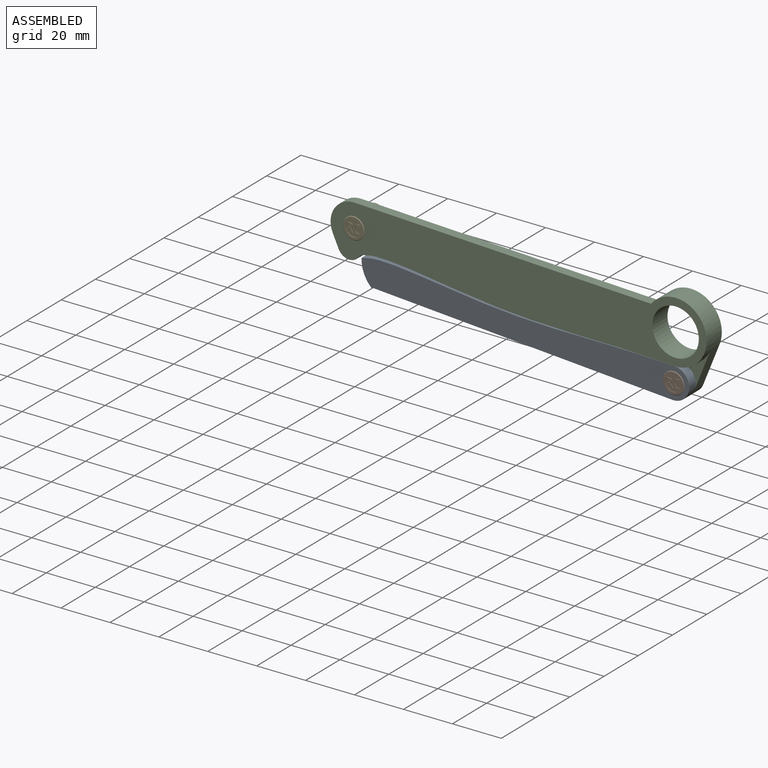
[diagram: assembled view]
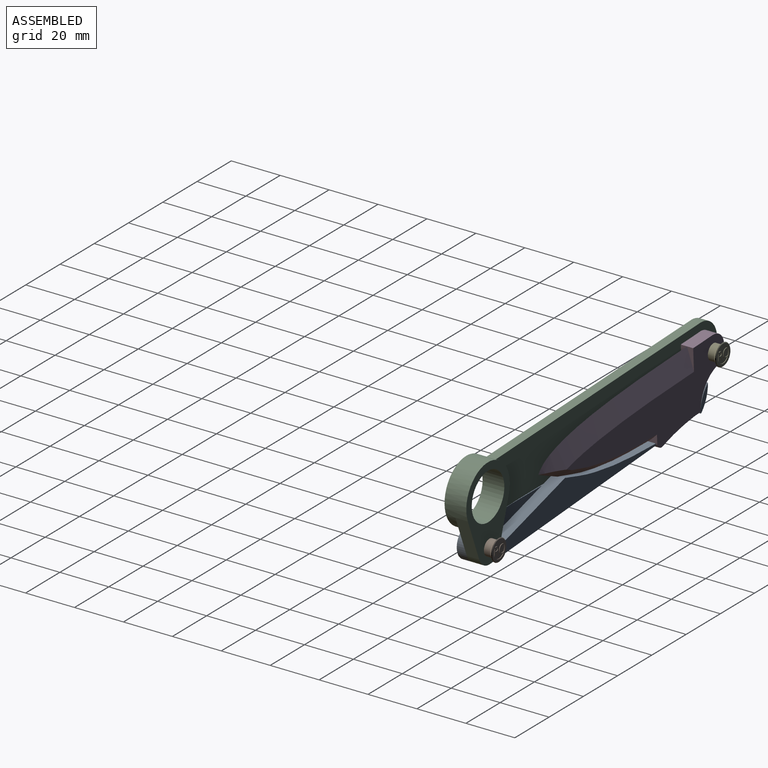
[diagram: assembled view, second angle]
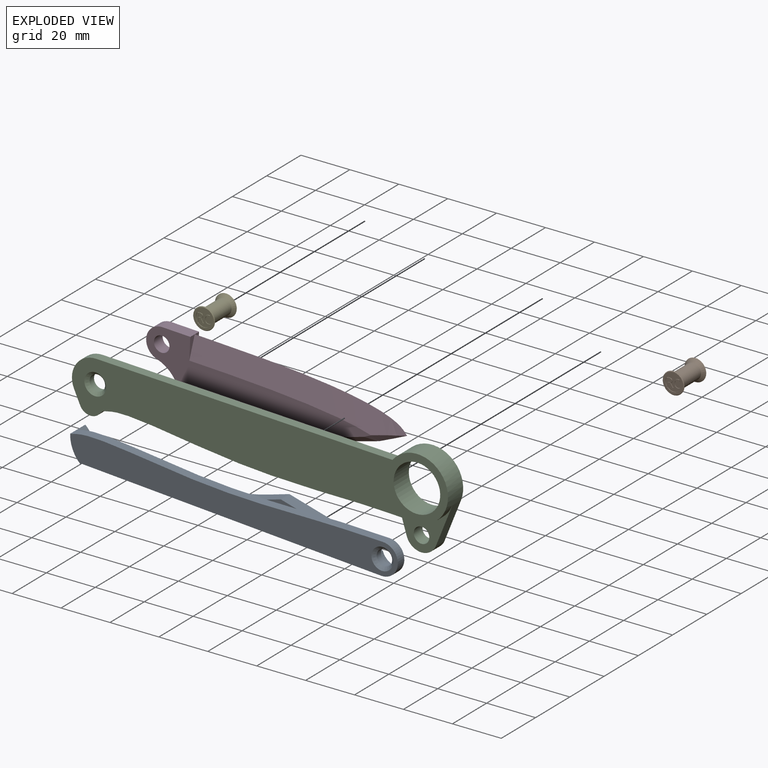
[diagram: exploded view]
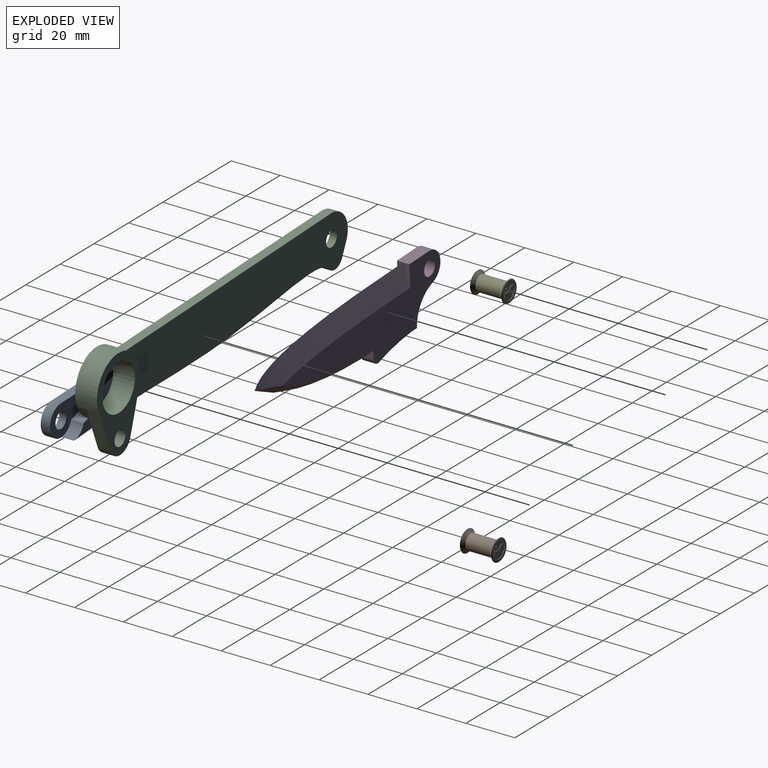
[diagram: exploded view, second angle]
ASSEMBLY  parts=5 mates=4
PART A: 21 faces, bbox 134.3x8.9x16.7 mm
  f0: plane 78.2x12.54mm, normal (0,1,0), area 564.9mm2, adj f4,f7,f12,f18,f19
  f1: plane 44.69x13.07mm, normal (0,1,0), area 240.7mm2, adj f5,f6,f7,f9,f16,f17
  f2: plane 0.51x0.46mm, normal (0,1,0), area 0.1mm2, adj f3,f8,f13
  f3: cylinder r=13.38mm len=3.81mm, axis (0,1,0), area 1.8mm2, adj f2,f4,f8,f10
  f4: plane 123.05x8.89mm, normal (0.04,0,1), area 962.1mm2, adj f0,f3,f5,f10,f17,f18,f20
  f5: cylinder r=6.35mm len=12.7mm, axis (0,1,0), area 76.9mm2, adj f1,f4,f6,f10
  f6: plane 14.86x3.81mm, normal (0,0,-1), area 56.6mm2, adj f1,f5,f7,f10
  f7: extruded ~113.07x3.94mm, area 432mm2, adj f0,f1,f6,f8,f10,f15
  f8: cylinder r=13.38mm len=10.14mm, axis (0,1,0), area 98.8mm2, adj f2,f3,f7,f10,f12,f13,f14
  f9: cylinder r=3.17mm len=6.35mm, axis (0,1,0), area 50.7mm2, adj f1,f11
  f10: plane 134.28x16.65mm, normal (0,-1,0), area 1356mm2, adj f3,f4,f5,f6,f7,f8,f11
  f11: cone r=3.17mm half-angle=45deg, axis (0,-1,0), area 43mm2, adj f9,f10
  f12: cylinder r=13.38mm len=9.68mm, axis (0,-1,0), area 56.1mm2, adj f0,f8,f13,f14
  f13: plane 5.08x0.5mm, normal (0,0,1), area 2.5mm2, adj f2,f8,f12,f14
  f14: plane 9.68x4.64mm, normal (0,1,0), area 18.2mm2, adj f8,f12,f13
  f15: plane 12.3x1.89mm, normal (0,-1,0), area 10.9mm2, adj f7,f16,f19
  f16: plane 38.46x9.43mm, normal (-0.24,0,-0.97), area 201.2mm2, adj f1,f15,f17,f19,f20
  f17: cylinder r=6.35mm len=5.75mm, axis (0,-1,0), area 38.5mm2, adj f1,f4,f16,f20
  f18: plane 5.08x0.72mm, normal (1,0,0), area 3.7mm2, adj f0,f4,f19,f20
  f19: extruded ~52.77x9.26mm, area 273.3mm2, adj f0,f15,f16,f18,f20
  f20: plane 96.97x13.66mm, normal (0,1,0), area 573.4mm2, adj f4,f16,f17,f18,f19
PART B: 89 faces, bbox 8.9x13.2x8.9 mm
  f0: cylinder r=3.17mm len=10.16mm, axis (0,1,0), area 202.7mm2, adj f1,f2
  f1: cone r=4.45mm half-angle=45deg, axis (0,-1,0), area 43mm2, adj f0,f45
  f2: cone r=3.17mm half-angle=45deg, axis (0,1,0), area 43mm2, adj f0,f88
  f3: plane 0.56x0.25mm, normal (0,0,1), area 0.1mm2, adj f4,f39,f40,f41
  f4: plane 1.35x0.25mm, normal (1,0,0), area 0.3mm2, adj f3,f5,f40,f41
  f5: plane 0.53x0.25mm, normal (0,0,-1), area 0.1mm2, adj f4,f6,f40,f41
  f6: extruded ~0.66x0.25mm, area 0.2mm2, adj f5,f7,f40,f41
  f7: extruded ~0.5x0.25mm, area 0.1mm2, adj f6,f8,f40,f41
  f8: extruded ~0.52x0.25mm, area 0.1mm2, adj f7,f39,f40,f41
  f9: cylinder r=3.17mm len=5.31mm, axis (0,1,0), area 1.6mm2, adj f10,f36,f40,f44
  f10: plane 0.35x0.25mm, normal (0,0,-1), area 0.1mm2, adj f9,f11,f40,f44
  f11: plane 1.47x0.25mm, normal (1,0,0), area 0.4mm2, adj f10,f12,f40,f44
  f12: plane 0.74x0.25mm, normal (0,0,-1), area 0.2mm2, adj f11,f13,f40,f44
  f13: plane 1.47x0.85mm, normal (-0.86,0,-0.5), area 0.4mm2, adj f12,f14,f40,f44
  f14: plane 0.49x0.25mm, normal (0,0,-1), area 0.1mm2, adj f13,f15,f40,f44
  f15: plane 1.59x0.96mm, normal (0.86,0,0.52), area 0.5mm2, adj f14,f16,f40,f44
  f16: extruded ~0.95x0.71mm, area 0.3mm2, adj f15,f17,f40,f44
  f17: extruded ~0.75x0.31mm, area 0.2mm2, adj f16,f18,f40,f44
  f18: extruded ~0.96x0.25mm, area 0.3mm2, adj f17,f19,f40,f44
  f19: plane 0.93x0.25mm, normal (0,0,1), area 0.2mm2, adj f18,f20,f40,f44
  f20: cylinder r=3.17mm len=5.35mm, axis (0,1,0), area 1.6mm2, adj f19,f21,f40,f44
  f21: extruded ~0.82x0.25mm, area 0.2mm2, adj f20,f22,f40,f44
  f22: extruded ~0.91x0.25mm, area 0.2mm2, adj f21,f23,f40,f44
  f23: extruded ~0.63x0.59mm, area 0.2mm2, adj f22,f24,f40,f44
  f24: extruded ~0.96x0.25mm, area 0.3mm2, adj f23,f25,f40,f44
  f25: extruded ~1.35x0.42mm, area 0.4mm2, adj f24,f26,f40,f44
  f26: extruded ~1.2x0.47mm, area 0.3mm2, adj f25,f36,f40,f44
  f27: plane 0.25x0.25mm, normal (0.9,0,-0.44), area 0.1mm2, adj f28,f37,f40,f43
  f28: cylinder r=3.17mm len=3.14mm, axis (0,1,0), area 0.8mm2, adj f27,f29,f40,f43
  f29: plane 0.31x0.25mm, normal (1,0,0), area 0.1mm2, adj f28,f30,f40,f43
  f30: extruded ~0.84x0.25mm, area 0.2mm2, adj f29,f31,f40,f43
  f31: extruded ~0.93x0.38mm, area 0.3mm2, adj f30,f32,f40,f43
  f32: extruded ~1.07x0.33mm, area 0.3mm2, adj f31,f33,f40,f43
  f33: extruded ~1.06x0.34mm, area 0.3mm2, adj f32,f34,f40,f43
  f34: extruded ~0.92x0.39mm, area 0.3mm2, adj f33,f37,f40,f43
  f35: plane 3.37x0.25mm, normal (-1,0,0), area 0.9mm2, adj f38,f40,f42
  f36: extruded ~0.87x0.25mm, area 0.2mm2, adj f9,f26,f40,f44
  f37: extruded ~0.8x0.25mm, area 0.2mm2, adj f27,f34,f40,f43
  f38: cylinder r=3.17mm len=3.37mm, axis (0,1,0), area 0.9mm2, adj f35,f40,f42
  f39: extruded ~0.64x0.25mm, area 0.2mm2, adj f3,f8,f40,f41
  f40: plane 8.38x8.38mm, normal (0,-1,0), area 30mm2, adj f3,f4,f5,f6,f7,f8,f9,f10
  f41: plane 1.4x1.35mm, normal (0,-1,0), area 1.7mm2, adj f3,f4,f5,f6,f7,f8,f39
  f42: plane 3.37x0.49mm, normal (0,-1,0), area 1.1mm2, adj f35,f38
  f43: plane 3.14x2.55mm, normal (0,-1,0), area 6.3mm2, adj f27,f28,f29,f30,f31,f32,f33,f34
  f44: plane 6.35x5.35mm, normal (0,-1,0), area 16.1mm2, adj f9,f10,f11,f12,f13,f14,f15,f16
  f45: cone r=4.45mm half-angle=45deg, axis (0,1,0), area 9.7mm2, adj f1,f40
  f46: plane 0.56x0.25mm, normal (0,0,1), area 0.1mm2, adj f47,f82,f83,f84
  f47: plane 1.35x0.25mm, normal (-1,0,0), area 0.3mm2, adj f46,f48,f83,f84
  f48: plane 0.53x0.25mm, normal (0,0,-1), area 0.1mm2, adj f47,f49,f83,f84
  f49: extruded ~0.66x0.25mm, area 0.2mm2, adj f48,f50,f83,f84
  f50: extruded ~0.5x0.25mm, area 0.1mm2, adj f49,f51,f83,f84
  f51: extruded ~0.52x0.25mm, area 0.1mm2, adj f50,f82,f83,f84
  f52: cylinder r=3.17mm len=5.31mm, axis (0,-1,0), area 1.6mm2, adj f53,f79,f83,f87
  f53: plane 0.35x0.25mm, normal (0,0,-1), area 0.1mm2, adj f52,f54,f83,f87
  f54: plane 1.47x0.25mm, normal (-1,0,0), area 0.4mm2, adj f53,f55,f83,f87
  f55: plane 0.74x0.25mm, normal (0,0,-1), area 0.2mm2, adj f54,f56,f83,f87
  f56: plane 1.47x0.85mm, normal (0.86,0,-0.5), area 0.4mm2, adj f55,f57,f83,f87
  f57: plane 0.49x0.25mm, normal (0,0,-1), area 0.1mm2, adj f56,f58,f83,f87
  f58: plane 1.59x0.96mm, normal (-0.86,0,0.52), area 0.5mm2, adj f57,f59,f83,f87
  f59: extruded ~0.95x0.71mm, area 0.3mm2, adj f58,f60,f83,f87
  f60: extruded ~0.75x0.31mm, area 0.2mm2, adj f59,f61,f83,f87
  f61: extruded ~0.96x0.25mm, area 0.3mm2, adj f60,f62,f83,f87
  f62: plane 0.93x0.25mm, normal (0,0,1), area 0.2mm2, adj f61,f63,f83,f87
  f63: cylinder r=3.17mm len=5.35mm, axis (0,-1,0), area 1.6mm2, adj f62,f64,f83,f87
  f64: extruded ~0.82x0.25mm, area 0.2mm2, adj f63,f65,f83,f87
  f65: extruded ~0.91x0.25mm, area 0.2mm2, adj f64,f66,f83,f87
  f66: extruded ~0.63x0.59mm, area 0.2mm2, adj f65,f67,f83,f87
  f67: extruded ~0.96x0.25mm, area 0.3mm2, adj f66,f68,f83,f87
  f68: extruded ~1.35x0.42mm, area 0.4mm2, adj f67,f69,f83,f87
  f69: extruded ~1.2x0.47mm, area 0.3mm2, adj f68,f79,f83,f87
  f70: plane 0.25x0.25mm, normal (-0.9,0,-0.44), area 0.1mm2, adj f71,f80,f83,f86
  f71: cylinder r=3.17mm len=3.14mm, axis (0,-1,0), area 0.8mm2, adj f70,f72,f83,f86
  f72: plane 0.31x0.25mm, normal (-1,0,0), area 0.1mm2, adj f71,f73,f83,f86
  f73: extruded ~0.84x0.25mm, area 0.2mm2, adj f72,f74,f83,f86
  f74: extruded ~0.93x0.38mm, area 0.3mm2, adj f73,f75,f83,f86
  f75: extruded ~1.07x0.33mm, area 0.3mm2, adj f74,f76,f83,f86
  f76: extruded ~1.06x0.34mm, area 0.3mm2, adj f75,f77,f83,f86
  f77: extruded ~0.92x0.39mm, area 0.3mm2, adj f76,f80,f83,f86
  f78: plane 3.37x0.25mm, normal (1,0,0), area 0.9mm2, adj f81,f83,f85
  f79: extruded ~0.87x0.25mm, area 0.2mm2, adj f52,f69,f83,f87
  f80: extruded ~0.8x0.25mm, area 0.2mm2, adj f70,f77,f83,f86
  f81: cylinder r=3.17mm len=3.37mm, axis (0,-1,0), area 0.9mm2, adj f78,f83,f85
  f82: extruded ~0.64x0.25mm, area 0.2mm2, adj f46,f51,f83,f84
  f83: plane 8.38x8.38mm, normal (0,1,0), area 30mm2, adj f46,f47,f48,f49,f50,f51,f52,f53
  f84: plane 1.4x1.35mm, normal (0,1,0), area 1.7mm2, adj f46,f47,f48,f49,f50,f51,f82
  f85: plane 3.37x0.49mm, normal (0,1,0), area 1.1mm2, adj f78,f81
  f86: plane 3.14x2.55mm, normal (0,1,0), area 6.3mm2, adj f70,f71,f72,f73,f74,f75,f76,f77
  f87: plane 6.35x5.35mm, normal (0,1,0), area 16.1mm2, adj f52,f53,f54,f55,f56,f57,f58,f59
  f88: cone r=4.19mm half-angle=45deg, axis (0,-1,0), area 9.7mm2, adj f2,f83
PART C: 19 faces, bbox 153.8x8.9x38.1 mm
  f0: plane 132.08x21.92mm, normal (0,1,0), area 2490.1mm2, adj f1,f2,f3,f4,f5,f6,f7,f8
  f1: cylinder r=4.77mm len=7.67mm, axis (0,1,0), area 34.8mm2, adj f0,f2,f9,f11
  f2: cylinder r=13.38mm len=3.81mm, axis (0,1,0), area 10.3mm2, adj f0,f1,f3,f11
  f3: extruded ~113.07x3.94mm, area 432mm2, adj f0,f2,f4,f11
  f4: plane 14.86x3.81mm, normal (0,0,1), area 56.6mm2, adj f0,f3,f5,f11,f17
  f5: cylinder r=12.7mm len=25.4mm, axis (0,1,0), area 444.5mm2, adj f0,f4,f6,f11,f12,f13,f15,f17
  f6: plane 121.21x3.81mm, normal (0,0,-1), area 461.8mm2, adj f0,f5,f7,f11
  f7: cylinder r=9.53mm len=13.82mm, axis (0,1,0), area 74mm2, adj f0,f6,f9,f11
  f8: cylinder r=3.16mm len=6.32mm, axis (0,1,0), area 50.5mm2, adj f0,f18
  f9: plane 5.12x3.81mm, normal (0.89,0,0.45), area 21.9mm2, adj f0,f1,f7,f11
  f10: cylinder r=9.53mm len=19.05mm, axis (0,1,0), area 532mm2, adj f11,f12
  f11: plane 153.76x27.23mm, normal (0,-1,0), area 2696.3mm2, adj f1,f2,f3,f4,f5,f6,f7,f9
  f12: plane 38.1x25.4mm, normal (0,1,0), area 383.3mm2, adj f5,f10,f13,f14,f15,f16
  f13: plane 16.93x5.99mm, normal (-0.94,0,0.33), area 91.2mm2, adj f5,f12,f14,f17
  f14: cylinder r=6.35mm len=11.97mm, axis (0,-1,0), area 79.4mm2, adj f12,f13,f15,f17
  f15: plane 16.93x5.99mm, normal (0.94,0,0.33), area 91.2mm2, adj f0,f5,f12,f14,f17
  f16: cylinder r=3.17mm len=6.35mm, axis (0,-1,0), area 101.3mm2, adj f12,f17
  f17: plane 21.17x20.95mm, normal (0,-1,0), area 146.8mm2, adj f4,f5,f13,f14,f15,f16
  f18: cone r=3.16mm half-angle=45deg, axis (0,-1,0), area 42.8mm2, adj f8,f11
PART D: 19 faces, bbox 107.7x8.3x31 mm
  f0: plane 8.88x2.54mm, normal (-1,0,0), area 11.3mm2, adj f6,f10,f13
  f1: plane 8.88x2.54mm, normal (-1,0,0), area 11.3mm2, adj f6,f11,f14
  f2: plane 5.08x3.18mm, normal (0,0,1), area 16.1mm2, adj f3,f8,f10,f11
  f3: extruded ~19.05x5.08mm, area 98.3mm2, adj f2,f4,f10,f11
  f4: cylinder r=2.53mm len=5.08mm, axis (0,1,0), area 23.6mm2, adj f3,f5,f10,f11
  f5: plane 5.08x3.32mm, normal (-1,0,0), area 10.4mm2, adj f4,f10,f11,f12,f16,f18
  f6: plane 11.43x5.08mm, normal (0,0,-1), area 58.1mm2, adj f0,f1,f7,f10,f11
  f7: cylinder r=6.35mm len=12.48mm, axis (0,1,0), area 92.9mm2, adj f6,f8,f10,f11
  f8: cylinder r=13.38mm len=12.92mm, axis (0,1,0), area 88.9mm2, adj f2,f7,f10,f11
  f9: cylinder r=3.17mm len=6.35mm, axis (0,1,0), area 101.3mm2, adj f10,f11
  f10: plane 95.1x30.94mm, normal (0,-1,0), area 1146.6mm2, adj f0,f2,f3,f4,f5,f6,f7,f8
  f11: plane 95.1x30.94mm, normal (0,1,0), area 1146.2mm2, adj f1,f2,f3,f4,f5,f6,f7,f8
  f12: extruded ~54.18x9.51mm, area 13.7mm2, adj f5,f15,f16,f17,f18
  f13: bspline ~91.79x15.77mm, area 762.8mm2, adj f0,f10,f14,f15
  f14: bspline ~87.42x15.67mm, area 762.5mm2, adj f1,f11,f13,f17
  f15: bspline ~15.84x6.73mm, area 34.8mm2, adj f10,f12,f13,f16,f17
  f16: bspline ~53.54x11.61mm, area 178.9mm2, adj f5,f10,f12,f15
  f17: bspline ~15.84x6.73mm, area 34.8mm2, adj f11,f12,f14,f15,f18
  f18: bspline ~66.46x13.7mm, area 178.9mm2, adj f5,f11,f12,f17
PART E: same geometry as B
PLACE A rot(axis=(0,-1,0),178.1deg) t=(25.67,17.2,17.21)mm
PLACE B rot(axis=(0,-1,0),4.4deg) t=(156.59,14.66,-3.94)mm
PLACE C rot(axis=(0,-1,0),177.7deg) t=(25.85,17.2,18.33)mm
PLACE D rot(axis=(0,-1,0),177.3deg) t=(25.85,17.2,18.33)mm
PLACE E t=(25.85,14.66,18.33)mm fixed
MATE revolute B.f0 <-> C.f14  axis (0,1,0) through (156.59,14.66,-3.94)mm
MATE revolute E.f0 <-> D.f9  axis (0,1,0) through (25.85,14.66,18.33)mm
MATE revolute C.f8 <-> E.f1  axis (0,-1,0) through (25.85,8.31,18.33)mm
MATE revolute A.f5 <-> B.f1  axis (0,-1,0) through (156.59,8.31,-3.94)mm
